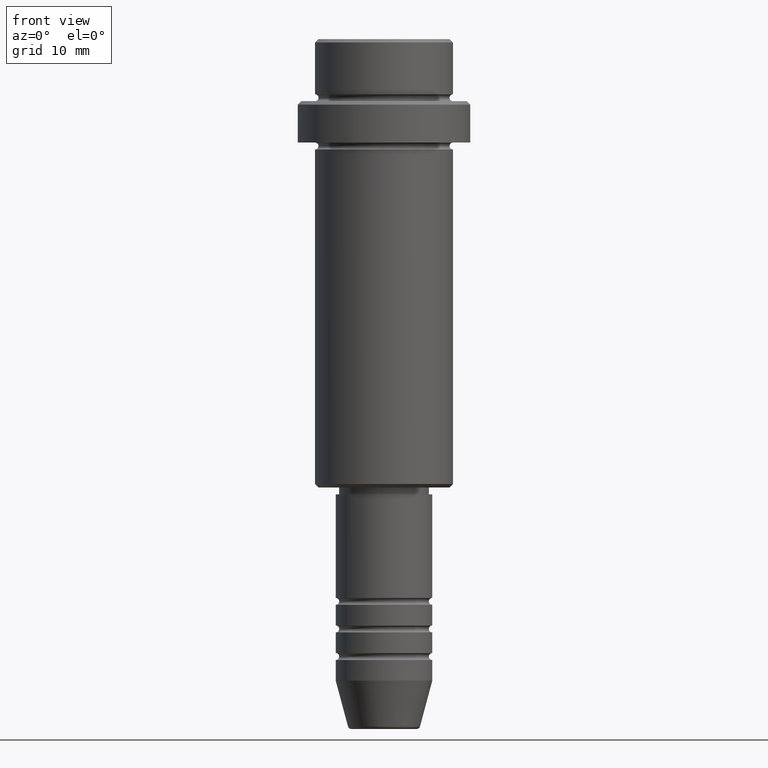
[diagram: clean part render]
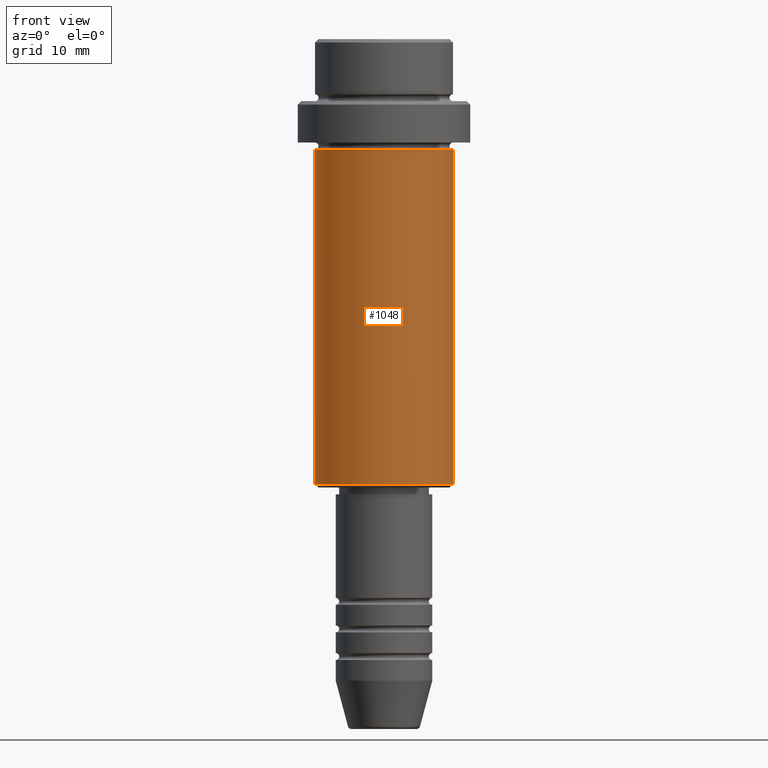
[diagram: same view with one face highlighted and labeled with its STEP entity id]
A machine part, front view. The second image highlights one B-rep face of the part: STEP entity #1048.
In plain terms, the highlighted cylindrical surface (partial cylindrical patch) has radius 10 mm, axis along (-0, -0, 1).
Its self-contained STEP definition (entity closure, byte-faithful):
#39 = CARTESIAN_POINT ( 'NONE',  ( 0.000000000000000000, 0.000000000000000000, 0.000000000000000000 ) ) ;
#133 = DIRECTION ( 'NONE',  ( 1.000000000000000000, 0.000000000000000000, 0.000000000000000000 ) ) ;
#139 = LINE ( 'NONE', #256, #1377 ) ;
#163 = EDGE_CURVE ( 'NONE', #1393, #634, #370, .T. ) ;
#256 = CARTESIAN_POINT ( 'NONE',  ( -9.999999999999998224, 1.224646799147353059E-15, 0.000000000000000000 ) ) ;
#277 = EDGE_CURVE ( 'NONE', #634, #867, #1074, .T. ) ;
#287 = CARTESIAN_POINT ( 'NONE',  ( 0.000000000000000000, 0.000000000000000000, -16.00000000000000000 ) ) ;
#354 = VERTEX_POINT ( 'NONE', #1171 ) ;
#361 = DIRECTION ( 'NONE',  ( -0.000000000000000000, -0.000000000000000000, 1.000000000000000000 ) ) ;
#370 = CIRCLE ( 'NONE', #601, 9.999999999999998224 ) ;
#423 = CARTESIAN_POINT ( 'NONE',  ( -9.999999999999998224, 1.224646799147353059E-15, -64.49999999999998579 ) ) ;
#567 = CYLINDRICAL_SURFACE ( 'NONE', #909, 9.999999999999998224 ) ;
#601 = AXIS2_PLACEMENT_3D ( 'NONE', #1053, #721, #959 ) ;
#634 = VERTEX_POINT ( 'NONE', #1241 ) ;
#649 = ORIENTED_EDGE ( 'NONE', *, *, #1029, .F. ) ;
#721 = DIRECTION ( 'NONE',  ( -0.000000000000000000, -0.000000000000000000, 1.000000000000000000 ) ) ;
#760 = EDGE_LOOP ( 'NONE', ( #649, #1384, #924, #858 ) ) ;
#777 = CARTESIAN_POINT ( 'NONE',  ( 9.999999999999998224, 0.000000000000000000, 0.000000000000000000 ) ) ;
#854 = DIRECTION ( 'NONE',  ( -0.000000000000000000, -0.000000000000000000, 1.000000000000000000 ) ) ;
#858 = ORIENTED_EDGE ( 'NONE', *, *, #1173, .F. ) ;
#867 = VERTEX_POINT ( 'NONE', #1063 ) ;
#909 = AXIS2_PLACEMENT_3D ( 'NONE', #39, #1355, #133 ) ;
#924 = ORIENTED_EDGE ( 'NONE', *, *, #277, .T. ) ;
#958 = DIRECTION ( 'NONE',  ( 1.000000000000000000, 0.000000000000000000, 0.000000000000000000 ) ) ;
#959 = DIRECTION ( 'NONE',  ( -1.000000000000000000, 0.000000000000000000, 0.000000000000000000 ) ) ;
#1029 = EDGE_CURVE ( 'NONE', #1393, #354, #139, .T. ) ;
#1048 = ADVANCED_FACE ( 'NONE', ( #1249 ), #567, .T. ) ;
#1053 = CARTESIAN_POINT ( 'NONE',  ( 0.000000000000000000, 0.000000000000000000, -64.49999999999998579 ) ) ;
#1060 = VECTOR ( 'NONE', #1323, 1000.000000000000000 ) ;
#1063 = CARTESIAN_POINT ( 'NONE',  ( 9.999999999999998224, 0.000000000000000000, -16.00000000000000000 ) ) ;
#1074 = LINE ( 'NONE', #777, #1060 ) ;
#1171 = CARTESIAN_POINT ( 'NONE',  ( -9.999999999999998224, 1.224646799147353059E-15, -16.00000000000000000 ) ) ;
#1173 = EDGE_CURVE ( 'NONE', #354, #867, #1359, .T. ) ;
#1241 = CARTESIAN_POINT ( 'NONE',  ( 9.999999999999998224, 0.000000000000000000, -64.49999999999998579 ) ) ;
#1249 = FACE_OUTER_BOUND ( 'NONE', #760, .T. ) ;
#1292 = AXIS2_PLACEMENT_3D ( 'NONE', #287, #854, #958 ) ;
#1323 = DIRECTION ( 'NONE',  ( -0.000000000000000000, -0.000000000000000000, 1.000000000000000000 ) ) ;
#1355 = DIRECTION ( 'NONE',  ( -0.000000000000000000, -0.000000000000000000, 1.000000000000000000 ) ) ;
#1359 = CIRCLE ( 'NONE', #1292, 9.999999999999998224 ) ;
#1377 = VECTOR ( 'NONE', #361, 1000.000000000000000 ) ;
#1384 = ORIENTED_EDGE ( 'NONE', *, *, #163, .T. ) ;
#1393 = VERTEX_POINT ( 'NONE', #423 ) ;